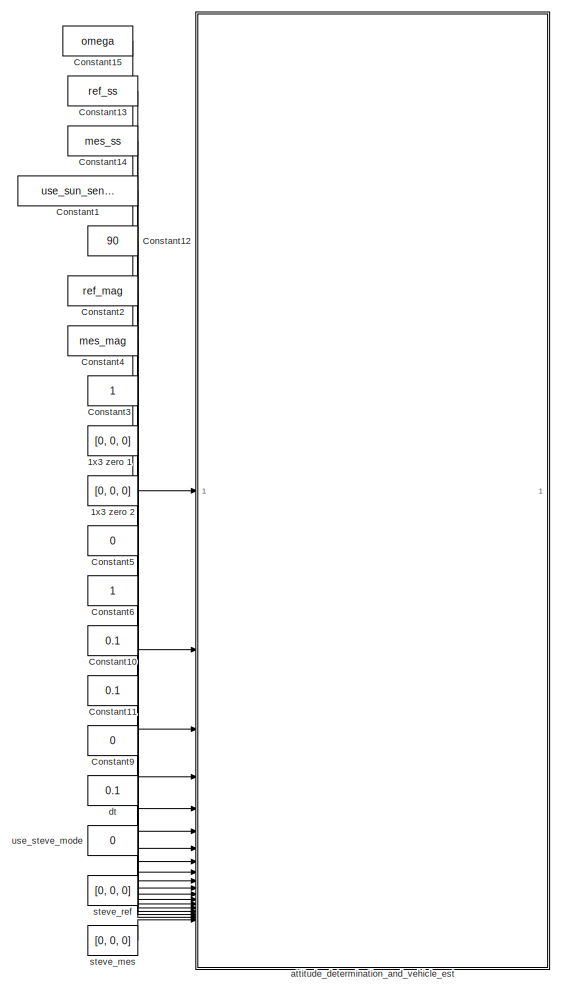
[diagram: root canvas - part 1/2, top center region]
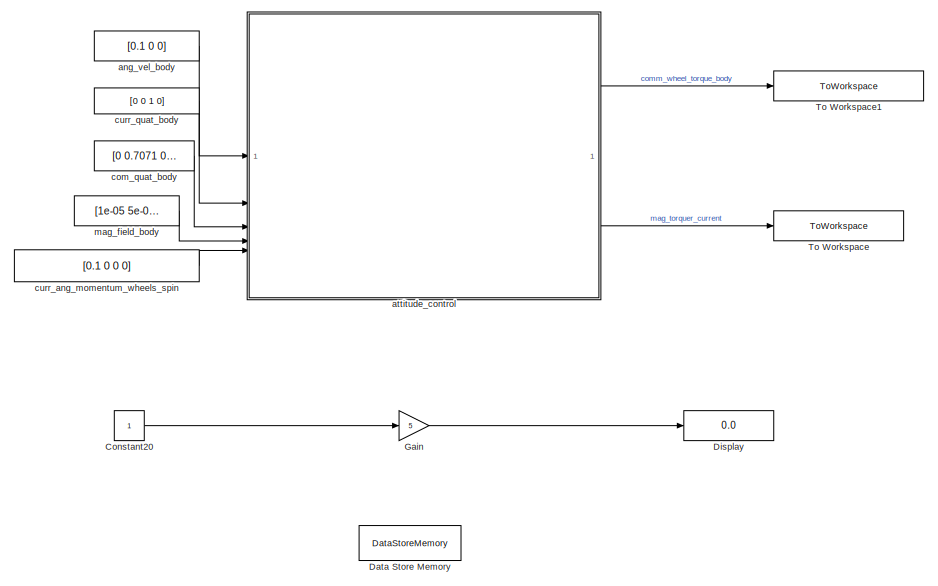
[diagram: root canvas - part 2/2, full width, bottom band]
MODEL slx_e386180ace34
KIND model
CONFIG AbsTol = auto
CONFIG EnableMultiTasking = off
CONFIG FixedStep = auto
CONFIG MaxStep = auto
CONFIG MinStep = auto
CONFIG RelTol = 1e-3
CONFIG SampleTimeConstraint = Unconstrained
CONFIG SolverName = VariableStepAuto
CONFIG StartTime = 0.0
CONFIG StopTime = 10
BLOCK [Constant] 1x3 zero 1
  Commented = on
  Value = [0, 0, 0]
BLOCK [Constant] 1x3 zero 2
  Commented = on
  Value = [0, 0, 0]
BLOCK [Constant] Constant1
  Commented = on
  Value = use_sun_sensor
BLOCK [Constant] Constant10
  Commented = on
  Value = 0.1
BLOCK [Constant] Constant11
  Commented = on
  Value = 0.1
BLOCK [Constant] Constant12
  Commented = on
  Value = 90
BLOCK [Constant] Constant13
  Commented = on
  Value = ref_ss
BLOCK [Constant] Constant14
  Commented = on
  Value = mes_ss
BLOCK [Constant] Constant15
  Commented = on
  Value = omega
BLOCK [Constant] Constant2
  Commented = on
  Value = ref_mag
BLOCK [Constant] Constant20
BLOCK [Constant] Constant3
  Commented = on
  OutDataTypeStr = boolean
BLOCK [Constant] Constant4
  Commented = on
  Value = mes_mag
BLOCK [Constant] Constant5
  Commented = on
  OutDataTypeStr = boolean
  Value = 0
BLOCK [Constant] Constant6
  Commented = on
  OutDataTypeStr = boolean
BLOCK [Constant] Constant9
  Commented = on
  Value = 0
BLOCK [DataStoreMemory] Data Store Memory
  DataStoreName = wheel_distrib_mat
  InitialValue = [0.5736 0.5736 0.5736 0.5736 ; 0.8192 -0.8192 0 0 ; 0 0 0.8192 -0.8192]
  ShowAdditionalParam = off
  WriteAfterWriteMsg = warning
BLOCK [Display] Display
  Decimation = 1
BLOCK [Gain] Gain
  Gain = 5
BLOCK [ToWorkspace] To Workspace
  FixptAsFi = on
  MaxDataPoints = inf
  SampleTime = -1
  SaveFormat = Timeseries
  VariableName = mag_torquer_current
BLOCK [ToWorkspace] To Workspace1
  FixptAsFi = on
  MaxDataPoints = inf
  SampleTime = -1
  SaveFormat = Timeseries
  VariableName = comm_wheel_torque_body
BLOCK [Constant] ang_vel_body
  Value = [0.1 0 0]
BLOCK [SubSystem] attitude_control
  ReferencedSubsystem = attitude_control
  TreatAsAtomicUnit = on
BLOCK [SubSystem] attitude_determination_and_vehicle_est
  Commented = on
  PermitHierarchicalResolution = ExplicitOnly
  PortSchema = {"entries":[{"content":{"sides":[{"content":{"connectorIds":["In1","In2","In3","In4","In15","In5","In6","In7","In8","In9","In10","In11","In12","In13","In14","In16","In17","In18","In19"]},"type":"ConnectorPlacement.EquallySpacedRectSide","uuid":"3b22937b-158d-42bc-8266-221df4d5bb4f"},{"content":{"connectorIds":["Out1","Out2"],"side":"RIGHT"},"type":"ConnectorPlacement.EquallySpacedRectSide","uuid":...<+347ch>
  ReferencedSubsystem = attitude_determination_and_vehicle_est
  SystemSampleTime = 0.1
  TreatAsAtomicUnit = on
BLOCK [Constant] com_quat_body
  Value = [0 0.7071 0 0.7071]
BLOCK [Constant] curr_ang_momentum_wheels_spin
  Value = [0.1 0 0 0]
BLOCK [Constant] curr_quat_body
  Value = [0 0 1 0]
BLOCK [Constant] dt
  Commented = on
  Value = 0.1
BLOCK [Constant] mag_field_body
  Value = [1e-05 5e-06 1e-05]
BLOCK [Constant] steve_mes
  Commented = on
  Value = [0, 0, 0]
BLOCK [Constant] steve_ref
  Commented = on
  Value = [0, 0, 0]
BLOCK [Constant] use_steve_mode
  Commented = on
  OutDataTypeStr = boolean
  Value = 0
LINE 1x3 zero 1:1 -> attitude_determination_and_vehicle_est:8
LINE 1x3 zero 2:1 -> attitude_determination_and_vehicle_est:9
LINE Constant10:1 -> attitude_determination_and_vehicle_est:12
LINE Constant11:1 -> attitude_determination_and_vehicle_est:13
LINE Constant12:1 -> attitude_determination_and_vehicle_est:15
LINE Constant13:1 -> attitude_determination_and_vehicle_est:2
LINE Constant14:1 -> attitude_determination_and_vehicle_est:3
LINE Constant15:1 -> attitude_determination_and_vehicle_est:1
LINE Constant1:1 -> attitude_determination_and_vehicle_est:4
LINE Constant20:1 -> Gain:1
LINE Constant2:1 -> attitude_determination_and_vehicle_est:5
LINE Constant3:1 -> attitude_determination_and_vehicle_est:7
LINE Constant4:1 -> attitude_determination_and_vehicle_est:6
LINE Constant5:1 -> attitude_determination_and_vehicle_est:10
LINE Constant6:1 -> attitude_determination_and_vehicle_est:11
LINE Constant9:1 -> attitude_determination_and_vehicle_est:14
LINE Gain:1 -> Display:1
LINE ang_vel_body:1 -> attitude_control:1
LINE attitude_control:1 -> To Workspace1:1
LINE attitude_control:2 -> To Workspace:1
LINE com_quat_body:1 -> attitude_control:3
LINE curr_ang_momentum_wheels_spin:1 -> attitude_control:5
LINE curr_quat_body:1 -> attitude_control:2
LINE dt:1 -> attitude_determination_and_vehicle_est:16
LINE mag_field_body:1 -> attitude_control:4
LINE steve_mes:1 -> attitude_determination_and_vehicle_est:19
LINE steve_ref:1 -> attitude_determination_and_vehicle_est:18
LINE use_steve_mode:1 -> attitude_determination_and_vehicle_est:17
